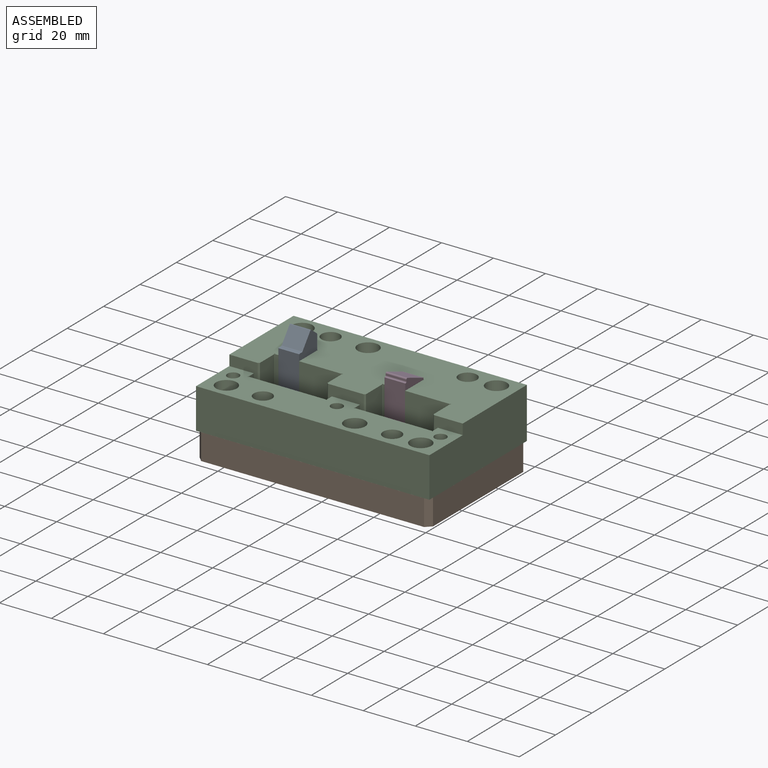
[diagram: assembled view]
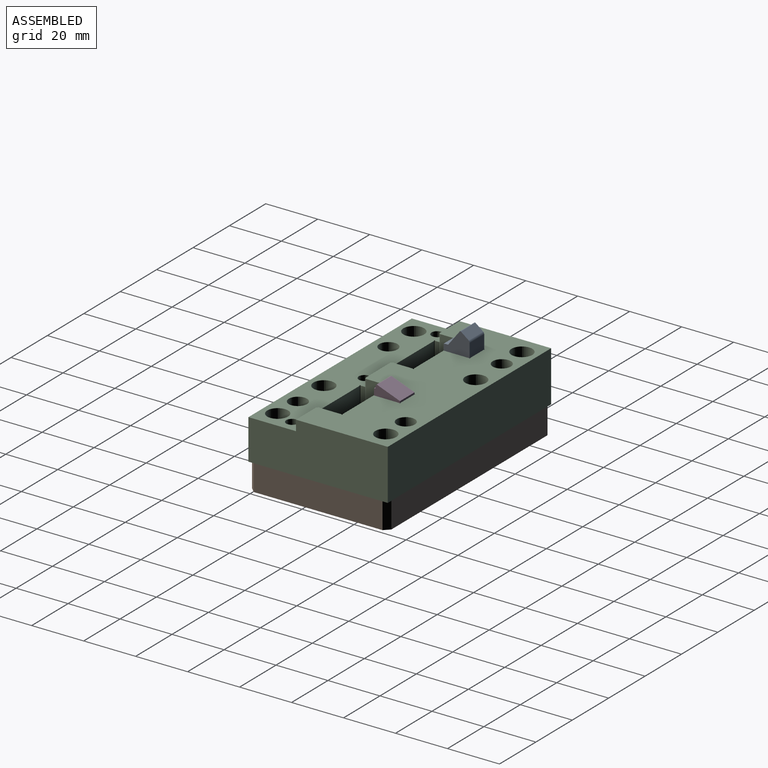
[diagram: assembled view, second angle]
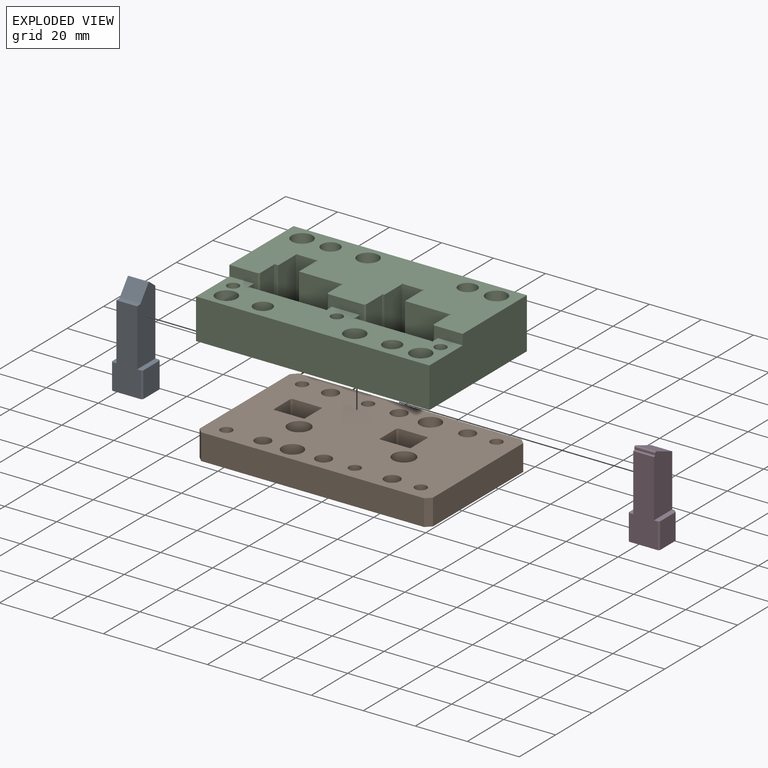
[diagram: exploded view]
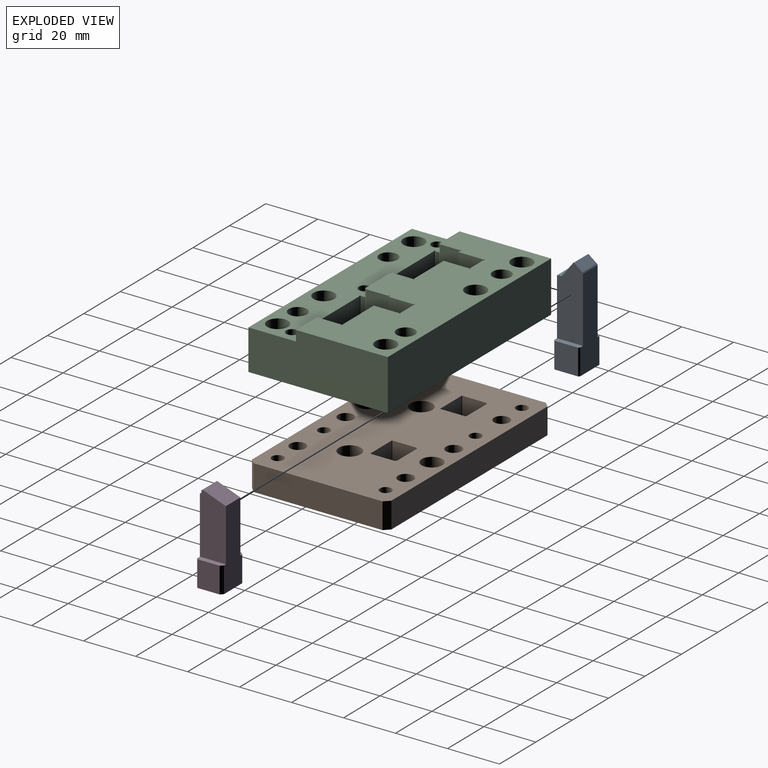
[diagram: exploded view, second angle]
ASSEMBLY  parts=4 mates=3
PART A: 20 faces, bbox 12x10x38 mm
  f0: plane 34.8x10.5mm, normal (0,1,0), area 303.4mm2, adj f1,f9,f10,f11,f12,f13,f16,f17
  f1: cylinder r=1mm len=8mm, axis (-1,0,0), area 7.3mm2, adj f0,f2,f9,f10
  f2: plane 8x2.98mm, normal (0,0.61,0.79), area 30.1mm2, adj f1,f3,f9,f10
  f3: cylinder r=0.3mm len=8mm, axis (-1,0,0), area 3.8mm2, adj f2,f4,f9,f10
  f4: plane 8x5.68mm, normal (0,-0.79,0.61), area 57.3mm2, adj f3,f5,f9,f10
  f5: cylinder r=0.4mm len=8mm, axis (-1,0,0), area 2.9mm2, adj f4,f6,f9,f10
  f6: plane 8x0.53mm, normal (0,0,1), area 4.2mm2, adj f5,f7,f9,f10
  f7: cylinder r=6mm len=8mm, axis (-1,0,0), area 8mm2, adj f6,f8,f9,f10
  f8: plane 31.92x11mm, normal (0,-1,0), area 285.3mm2, adj f7,f9,f10,f11,f12,f13,f18,f19
  f9: plane 27.96x10mm, normal (1,0,0), area 251.1mm2, adj f0,f1,f2,f3,f4,f5,f6,f7
  f10: plane 27.96x10mm, normal (-1,0,0), area 251.1mm2, adj f0,f1,f2,f3,f4,f5,f6,f7
  f11: plane 10x2mm, normal (0,0,1), area 19.8mm2, adj f0,f8,f9,f14,f17,f18
  f12: plane 12x10mm, normal (0,0,-1), area 119.1mm2, adj f0,f8,f14,f15,f16,f17,f18,f19
  f13: plane 10x2mm, normal (0,0,1), area 19.4mm2, adj f0,f8,f10,f15,f16,f19
  f14: plane 9.99x9mm, normal (1,0,0), area 89.9mm2, adj f11,f12,f17,f18
  f15: plane 9.99x8.5mm, normal (-1,0,0), area 84.9mm2, adj f12,f13,f16,f19
  f16: plane 9.99x1mm, normal (-0.71,0.71,0), area 14.1mm2, adj f0,f12,f13,f15
  f17: plane 9.99x0.5mm, normal (0.71,0.71,0), area 7.1mm2, adj f0,f11,f12,f14
  f18: plane 9.99x0.5mm, normal (0.71,-0.71,0), area 7.1mm2, adj f8,f11,f12,f14
  f19: plane 9.99x0.5mm, normal (-0.71,-0.71,0), area 7.1mm2, adj f8,f12,f13,f15
PART B: 46 faces, bbox 89.8x53.6x10 mm
  f0: plane 89.8x53.6mm, normal (0,0,1), area 4086.3mm2, adj f2,f3,f4,f5,f6,f7,f8,f9
  f1: plane 89.8x53.6mm, normal (0,0,-1), area 4155mm2, adj f2,f3,f4,f5,f6,f7,f8,f9
  f2: plane 49.6x10mm, normal (-1,0,0), area 496mm2, adj f0,f1,f42,f44
  f3: plane 85.8x10mm, normal (0,-1,0), area 858mm2, adj f0,f1,f44,f45
  f4: plane 49.6x10mm, normal (1,0,0), area 496mm2, adj f0,f1,f43,f45
  f5: plane 85.8x10mm, normal (0,1,0), area 858mm2, adj f0,f1,f42,f43
  f6: plane 10x9.3mm, normal (1,0,0), area 93mm2, adj f0,f1,f16,f17
  f7: plane 11.6x10mm, normal (0,1,0), area 116mm2, adj f0,f1,f17,f18
  f8: plane 10x9.3mm, normal (-1,0,0), area 93mm2, adj f0,f1,f15,f18
  f9: plane 11x10mm, normal (0,-1,0), area 110mm2, adj f0,f1,f15,f16
  f10: plane 10x9.3mm, normal (1,0,0), area 93mm2, adj f0,f1,f14,f21
  f11: plane 11.6x10mm, normal (0,1,0), area 116mm2, adj f0,f1,f20,f21
  f12: plane 10x9.6mm, normal (-1,0,0), area 96mm2, adj f0,f1,f19,f20
  f13: plane 11.3x10mm, normal (0,-1,0), area 113mm2, adj f0,f1,f14,f19
  f14: plane 10x0.5mm, normal (0.71,-0.71,0), area 7.1mm2, adj f0,f1,f10,f13
  f15: plane 10x0.5mm, normal (-0.71,-0.71,0), area 7.1mm2, adj f0,f1,f8,f9
  f16: plane 10x0.5mm, normal (0.71,-0.71,0), area 7.1mm2, adj f0,f1,f6,f9
  f17: cylinder r=0.2mm len=10mm, axis (0,0,1), area 3.1mm2, adj f0,f1,f6,f7
  f18: cylinder r=0.2mm len=10mm, axis (0,0,-1), area 3.1mm2, adj f0,f1,f7,f8
  f19: cylinder r=0.2mm len=10mm, axis (0,0,1), area 3.1mm2, adj f0,f1,f12,f13
  f20: cylinder r=0.2mm len=10mm, axis (0,0,-1), area 3.1mm2, adj f0,f1,f11,f12
  f21: cylinder r=0.2mm len=10mm, axis (0,0,1), area 3.1mm2, adj f0,f1,f10,f11
  f22: cylinder r=2.25mm len=10mm, axis (0,0,1), area 141.4mm2, adj f0,f1
  f23: cylinder r=2.25mm len=10mm, axis (0,0,1), area 141.4mm2, adj f0,f1
  f24: cylinder r=2.25mm len=10mm, axis (0,0,1), area 141.4mm2, adj f0,f1
  f25: cylinder r=2.25mm len=10mm, axis (0,0,1), area 141.4mm2, adj f0,f1
  f26: cylinder r=2.25mm len=10mm, axis (0,0,1), area 141.4mm2, adj f0,f1
  f27: cylinder r=2.25mm len=10mm, axis (0,0,1), area 141.4mm2, adj f0,f1
  f28: cylinder r=4.25mm len=10mm, axis (0,0,1), area 267mm2, adj f0,f1
  f29: cylinder r=4.25mm len=10mm, axis (0,0,1), area 267mm2, adj f0,f1
  f30: cylinder r=2.25mm len=5.5mm, axis (0,0,1), area 77.8mm2, adj f1,f31
  f31: plane 8x8mm, normal (0,0,1), area 34.4mm2, adj f30,f32
  f32: cylinder r=4mm len=8mm, axis (0,0,1), area 113.1mm2, adj f0,f31
  f33: cylinder r=2.25mm len=5.5mm, axis (0,0,1), area 77.8mm2, adj f1,f34
  f34: plane 8x8mm, normal (0,0,1), area 34.4mm2, adj f33,f35
  f35: cylinder r=4mm len=8mm, axis (0,0,1), area 113.1mm2, adj f0,f34
  f36: cylinder r=3mm len=10mm, axis (0,0,1), area 188.6mm2, adj f0,f1
  f37: cylinder r=3mm len=10mm, axis (0,0,1), area 188.6mm2, adj f0,f1
  f38: cylinder r=3mm len=10mm, axis (0,0,1), area 188.6mm2, adj f0,f1
  f39: cylinder r=3mm len=10mm, axis (0,0,1), area 188.6mm2, adj f0,f1
  f40: cylinder r=3mm len=10mm, axis (0,0,1), area 188.6mm2, adj f0,f1
  f41: cylinder r=3mm len=10mm, axis (0,0,1), area 188.6mm2, adj f0,f1
  f42: plane 10x2mm, normal (-0.71,0.71,0), area 28.3mm2, adj f0,f1,f2,f5
  f43: plane 10x2mm, normal (0.71,0.71,0), area 28.3mm2, adj f0,f1,f4,f5
  f44: plane 10x2mm, normal (-0.71,-0.71,0), area 28.3mm2, adj f0,f1,f2,f3
  f45: plane 10x2mm, normal (0.71,-0.71,0), area 28.3mm2, adj f0,f1,f3,f4
PART C: 82 faces, bbox 89.8x53.6x19.5 mm
  f0: plane 89.8x35.28mm, normal (0,0,1), area 2306mm2, adj f1,f2,f3,f4,f5,f6,f7,f8
  f1: plane 19.5x8.95mm, normal (-1,0,0), area 174.4mm2, adj f0,f22,f66,f81
  f2: plane 19.5x17.2mm, normal (0,-1,0), area 335.4mm2, adj f0,f3,f22,f81
  f3: plane 19.5x9.81mm, normal (-1,0,0), area 191.2mm2, adj f0,f2,f22,f80
  f4: plane 19.5x7.61mm, normal (0,-1,0), area 148.4mm2, adj f0,f22,f79,f80
  f5: plane 19.5x9.81mm, normal (1,0,0), area 191.2mm2, adj f0,f6,f22,f79
  f6: plane 19.5x0.4mm, normal (0,-1,0), area 7.8mm2, adj f0,f5,f22,f78
  f7: plane 19.5x8.95mm, normal (1,0,0), area 174.4mm2, adj f0,f22,f67,f78
  f8: plane 19.5x7.83mm, normal (1,0,0), area 152.6mm2, adj f0,f22,f69,f74
  f9: plane 19.5x7.83mm, normal (-1,0,0), area 152.6mm2, adj f0,f22,f68,f77
  f10: plane 19.5x16.4mm, normal (0,-1,0), area 319.8mm2, adj f0,f11,f22,f77
  f11: plane 19.5x9.81mm, normal (-1,0,0), area 191.2mm2, adj f0,f10,f22,f76
  f12: plane 19.5x7.61mm, normal (0,-1,0), area 148.4mm2, adj f0,f22,f75,f76
  f13: plane 19.5x9.81mm, normal (1,0,0), area 191.2mm2, adj f0,f14,f22,f75
  f14: plane 19.5x1.2mm, normal (0,-1,0), area 23.4mm2, adj f0,f13,f22,f74
  f15: plane 89.8x18.32mm, normal (0,0,1), area 1189.5mm2, adj f16,f17,f18,f19,f20,f21,f23,f24
  f16: plane 15.5x2.8mm, normal (1,0,0), area 43.4mm2, adj f15,f22,f23,f73
  f17: plane 15.5x2.8mm, normal (-1,0,0), area 43.4mm2, adj f15,f22,f24,f72
  f18: plane 29.61x15.5mm, normal (0,1,0), area 458.9mm2, adj f15,f22,f72,f73
  f19: plane 15.5x2.8mm, normal (1,0,0), area 43.4mm2, adj f15,f22,f26,f71
  f20: plane 15.5x2.8mm, normal (-1,0,0), area 43.4mm2, adj f15,f22,f23,f70
  f21: plane 29.61x15.5mm, normal (0,1,0), area 458.9mm2, adj f15,f22,f70,f71
  f22: plane 89.8x53.6mm, normal (0,0,-1), area 3790.1mm2, adj f1,f2,f3,f4,f5,f6,f7,f8
  f23: plane 19.5x13.79mm, normal (0,-1,0), area 101.6mm2, adj f0,f15,f16,f20,f22,f67,f68
  f24: plane 19.5x11.05mm, normal (0,-1,0), area 67.4mm2, adj f0,f15,f17,f22,f27,f66
  f25: plane 53.6x19.5mm, normal (-1,0,0), area 971.9mm2, adj f0,f15,f22,f26,f28,f29
  f26: plane 19.5x10.95mm, normal (0,-1,0), area 67mm2, adj f0,f15,f19,f22,f25,f69
  f27: plane 53.6x19.5mm, normal (1,0,0), area 971.9mm2, adj f0,f15,f22,f24,f28,f29
  f28: plane 89.8x19.5mm, normal (0,1,0), area 1751.1mm2, adj f0,f22,f25,f27
  f29: plane 89.8x15.5mm, normal (0,-1,0), area 1391.9mm2, adj f15,f22,f25,f27
  f30: cylinder r=2.25mm len=15mm, axis (0,0,1), area 212.1mm2, adj f22,f31
  f31: plane 8x8mm, normal (0,0,1), area 34.4mm2, adj f30,f32
  f32: cylinder r=4mm len=8mm, axis (0,0,1), area 113.1mm2, adj f0,f31
  f33: cylinder r=2.25mm len=15mm, axis (0,0,1), area 212.1mm2, adj f22,f34
  f34: plane 8x8mm, normal (0,0,1), area 34.4mm2, adj f33,f35
  f35: cylinder r=4mm len=8mm, axis (0,0,1), area 113.1mm2, adj f0,f34
  f36: cylinder r=2.25mm len=15mm, axis (0,0,1), area 212.1mm2, adj f22,f37
  f37: plane 8x8mm, normal (0,0,1), area 34.4mm2, adj f36,f38
  f38: cylinder r=4mm len=8mm, axis (0,0,1), area 113.1mm2, adj f0,f37
  f39: cylinder r=3mm len=10mm, axis (0,0,1), area 188.6mm2, adj f22,f40
  f40: plane 7x7mm, normal (0,0,1), area 10.2mm2, adj f39,f41
  f41: cylinder r=3.5mm len=9.5mm, axis (0,0,1), area 208.9mm2, adj f0,f40
  f42: cylinder r=3mm len=10mm, axis (0,0,1), area 188.6mm2, adj f22,f43
  f43: plane 7x7mm, normal (0,0,1), area 10.2mm2, adj f42,f44
  f44: cylinder r=3.5mm len=9.5mm, axis (0,0,1), area 208.9mm2, adj f0,f43
  f45: cone r=0mm half-angle=59deg, axis (0,0,1), area 18.6mm2, adj f46
  f46: cylinder r=2.25mm len=10mm, axis (0,0,1), area 141.4mm2, adj f15,f45
  f47: cone r=0mm half-angle=59deg, axis (0,0,1), area 18.6mm2, adj f48
  f48: cylinder r=2.25mm len=10mm, axis (0,0,1), area 141.4mm2, adj f15,f47
  f49: cone r=0mm half-angle=59deg, axis (0,0,1), area 18.6mm2, adj f50
  f50: cylinder r=2.25mm len=10mm, axis (0,0,1), area 141.4mm2, adj f15,f49
  f51: cylinder r=2.25mm len=11mm, axis (0,0,1), area 155.5mm2, adj f22,f52
  f52: plane 8x8mm, normal (0,0,1), area 34.4mm2, adj f51,f53
  f53: cylinder r=4mm len=8mm, axis (0,0,1), area 113.1mm2, adj f15,f52
  f54: cylinder r=2.25mm len=11mm, axis (0,0,1), area 155.5mm2, adj f22,f55
  f55: plane 8x8mm, normal (0,0,1), area 34.4mm2, adj f54,f56
  f56: cylinder r=4mm len=8mm, axis (0,0,1), area 113.1mm2, adj f15,f55
  f57: cylinder r=2.25mm len=11mm, axis (0,0,1), area 155.5mm2, adj f22,f58
  f58: plane 8x8mm, normal (0,0,1), area 34.4mm2, adj f57,f59
  f59: cylinder r=4mm len=8mm, axis (0,0,1), area 113.1mm2, adj f15,f58
  f60: cylinder r=3mm len=6mm, axis (0,0,1), area 113.2mm2, adj f22,f61
  f61: plane 7x7mm, normal (0,0,1), area 10.2mm2, adj f60,f62
  f62: cylinder r=3.5mm len=9.5mm, axis (0,0,1), area 208.9mm2, adj f15,f61
  f63: cylinder r=3mm len=6mm, axis (0,0,1), area 113.2mm2, adj f22,f64
  f64: plane 7x7mm, normal (0,0,1), area 10.2mm2, adj f63,f65
  f65: cylinder r=3.5mm len=9.5mm, axis (0,0,1), area 208.9mm2, adj f15,f64
  f66: plane 19.5x0.5mm, normal (-0.71,-0.71,0), area 13.8mm2, adj f0,f1,f22,f24
  f67: plane 19.5x0.5mm, normal (0.71,-0.71,0), area 13.8mm2, adj f0,f7,f22,f23
  f68: plane 19.5x0.5mm, normal (-0.71,-0.71,0), area 13.8mm2, adj f0,f9,f22,f23
  f69: plane 19.5x0.5mm, normal (0.71,-0.71,0), area 13.8mm2, adj f0,f8,f22,f26
  f70: cylinder r=0.2mm len=15.5mm, axis (0,0,1), area 14.6mm2, adj f15,f20,f21,f22
  f71: cylinder r=0.2mm len=15.5mm, axis (0,0,1), area 14.6mm2, adj f15,f19,f21,f22
  f72: cylinder r=0.2mm len=15.5mm, axis (0,0,1), area 14.6mm2, adj f15,f17,f18,f22
  f73: cylinder r=0.2mm len=15.5mm, axis (0,0,1), area 14.6mm2, adj f15,f16,f18,f22
  f74: cylinder r=0.2mm len=19.5mm, axis (0,0,1), area 18.4mm2, adj f0,f8,f14,f22
  f75: cylinder r=0.2mm len=19.5mm, axis (0,0,1), area 18.4mm2, adj f0,f12,f13,f22
  f76: cylinder r=0.2mm len=19.5mm, axis (0,0,1), area 18.4mm2, adj f0,f11,f12,f22
  f77: cylinder r=0.2mm len=19.5mm, axis (0,0,1), area 18.4mm2, adj f0,f9,f10,f22
  f78: cylinder r=0.2mm len=19.5mm, axis (0,0,1), area 18.4mm2, adj f0,f6,f7,f22
  f79: cylinder r=0.2mm len=19.5mm, axis (0,0,1), area 18.4mm2, adj f0,f4,f5,f22
  f80: cylinder r=0.2mm len=19.5mm, axis (0,0,1), area 18.4mm2, adj f0,f3,f4,f22
  f81: cylinder r=0.2mm len=19.5mm, axis (0,0,1), area 18.4mm2, adj f0,f1,f2,f22
PART D: 18 faces, bbox 12x10x33.5 mm
  f0: plane 31.99x11mm, normal (0,-1,0), area 285.9mm2, adj f6,f7,f8,f9,f10,f11,f14,f15
  f1: plane 30.19x10mm, normal (0,1,0), area 261.5mm2, adj f2,f7,f8,f9,f10,f11,f16,f17
  f2: plane 8.86x8mm, normal (0,0.35,0.94), area 75.7mm2, adj f1,f3,f7,f8
  f3: cylinder r=0.5mm len=8mm, axis (-1,0,0), area 6.3mm2, adj f2,f4,f7,f8
  f4: plane 8x0.55mm, normal (0,-1,0), area 4.4mm2, adj f3,f5,f7,f8
  f5: cylinder r=0.48mm len=8mm, axis (-1,0,0), area 6mm2, adj f4,f6,f7,f8
  f6: plane 8x0.16mm, normal (0,-0.05,1), area 1.3mm2, adj f0,f5,f7,f8
  f7: plane 23.53x10mm, normal (1,0,0), area 219.6mm2, adj f0,f1,f2,f3,f4,f5,f6,f9
  f8: plane 23.53x10mm, normal (-1,0,0), area 219.6mm2, adj f0,f1,f2,f3,f4,f5,f6,f11
  f9: plane 10x2mm, normal (0,0,1), area 19.4mm2, adj f0,f1,f7,f12,f15,f17
  f10: plane 12x10mm, normal (0,0,-1), area 118.8mm2, adj f0,f1,f12,f13,f14,f15,f16,f17
  f11: plane 10x2mm, normal (0,0,1), area 19.4mm2, adj f0,f1,f8,f13,f14,f16
  f12: plane 9.99x8.5mm, normal (1,0,0), area 84.9mm2, adj f9,f10,f15,f17
  f13: plane 9.99x8.5mm, normal (-1,0,0), area 84.9mm2, adj f10,f11,f14,f16
  f14: plane 9.99x0.5mm, normal (-0.71,-0.71,0), area 7.1mm2, adj f0,f10,f11,f13
  f15: plane 9.99x0.5mm, normal (0.71,-0.71,0), area 7.1mm2, adj f0,f9,f10,f12
  f16: plane 9.99x1mm, normal (-0.71,0.71,0), area 14.1mm2, adj f1,f10,f11,f13
  f17: plane 9.99x1mm, normal (0.71,0.71,0), area 14.1mm2, adj f1,f9,f10,f12
PLACE A t=(28.3,27.1,-13.21)mm
PLACE B t=(11.43,0.24,-13.22)mm
PLACE C t=(11.43,0.25,-3.22)mm
PLACE D t=(68.3,28.31,-13.21)mm
MATE fastened A.f14 <-> B.f12  axis (1,0,0) through (34.3,32.1,-8.22)mm
MATE fastened C.f63 <-> B.f41  axis (0,0,-1) through (32.93,6.29,-3.22)mm
MATE fastened D.f12 <-> B.f8  axis (1,0,0) through (74.3,33.06,-8.22)mm
